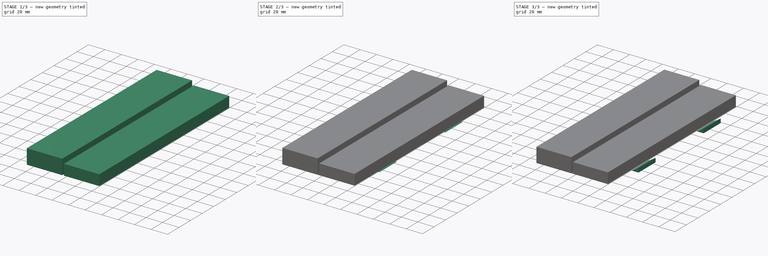
[diagram: build sequence overview — one tinted view per stage of 3, left to right]
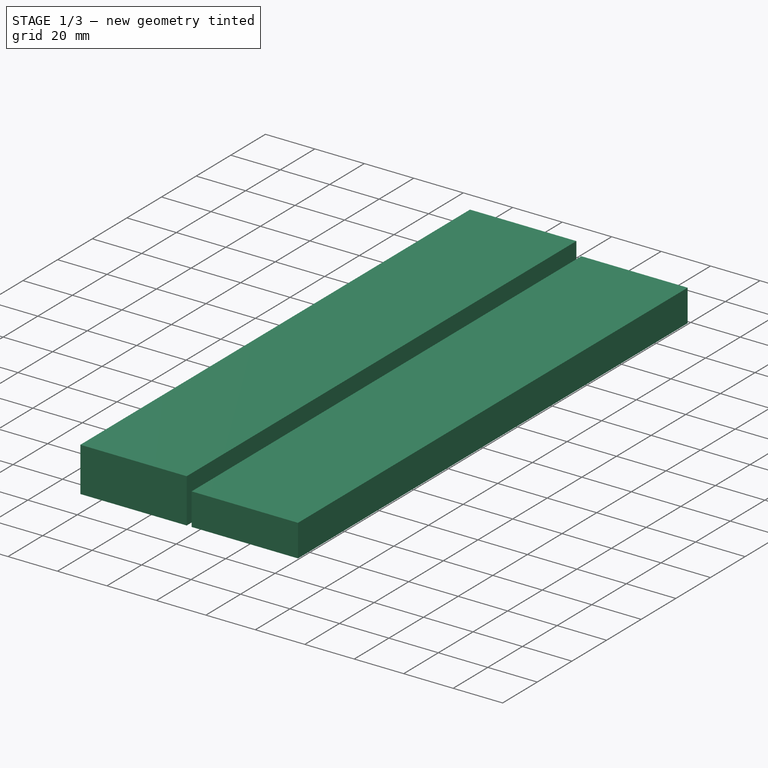
[diagram: stage 1 of 3 — iso view after this stage's code; geometry added in this stage tinted green]
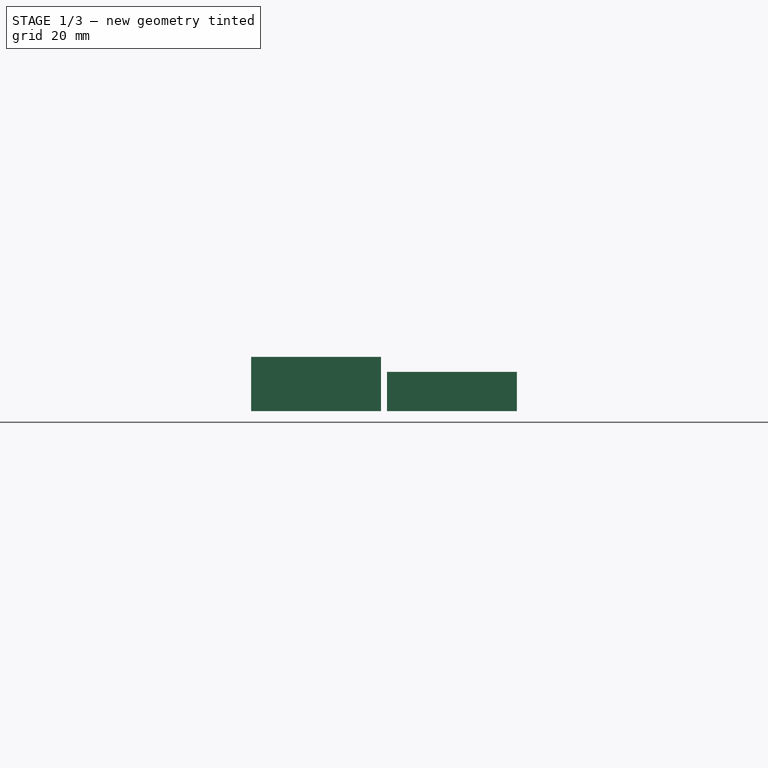
[diagram: stage 1 of 3 — front view after this stage's code; geometry added in this stage tinted green]
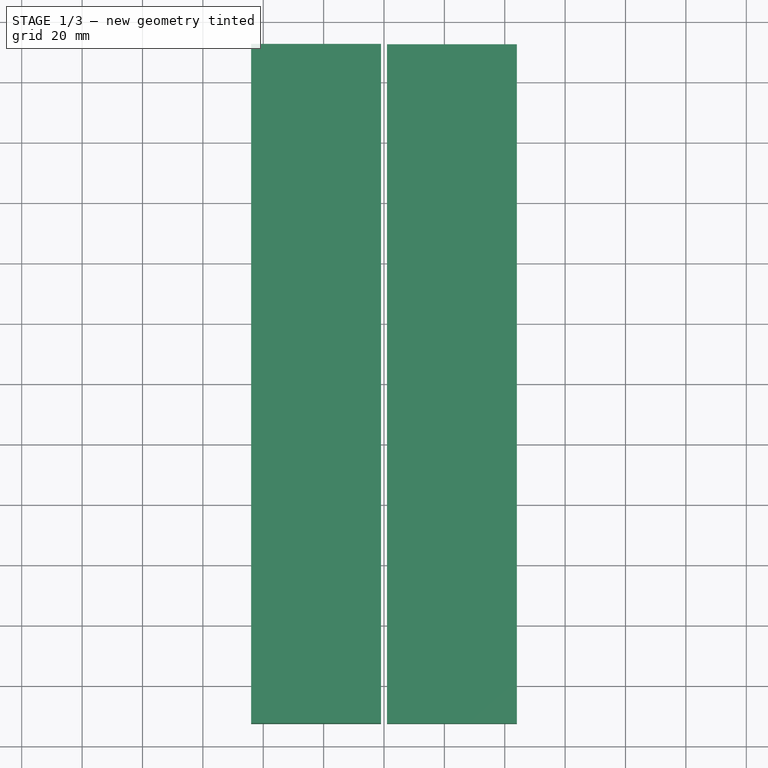
[diagram: stage 1 of 3 — top view after this stage's code; geometry added in this stage tinted green]
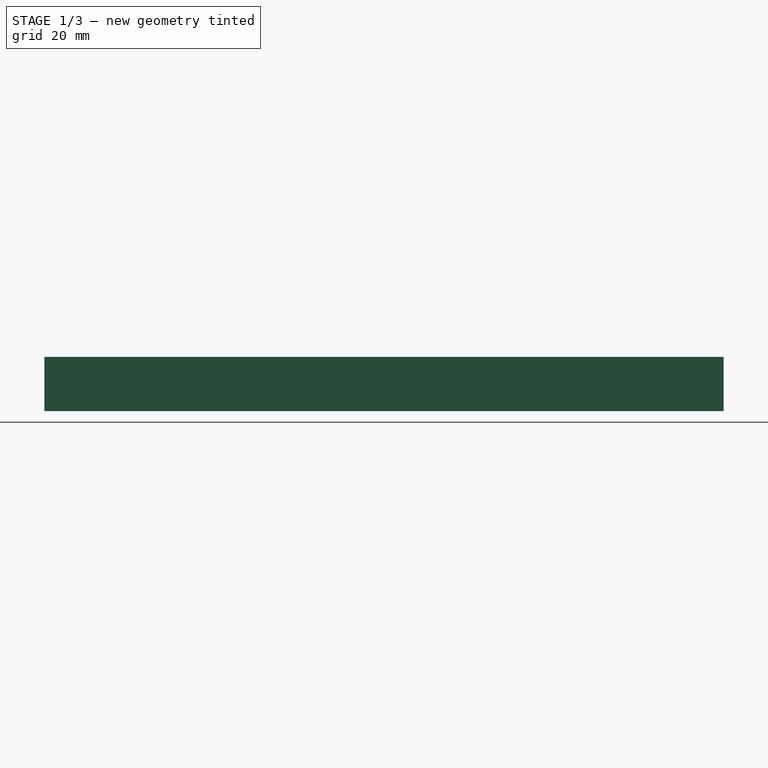
[diagram: stage 1 of 3 — right view after this stage's code; geometry added in this stage tinted green]
FCSTD DOCUMENT  (FreeCAD 2023.131R26244 +5365 (Git))
Label: Live Hinge Box
License: All rights reserved
LicenseURL: http://en.wikipedia.org/wiki/All_rights_reserved
objects: Sketcher::SketchObject×8, PartDesign::Pad×5, PartDesign::Pocket×3, Spreadsheet::Sheet×1, PartDesign::Body×1
note: 41 computed .brp shape members not serialized (recipe doc carries the construction recipe); baked Part::Feature solids carry a one-line shape summary decoded from their .brp

FEATURE [Spreadsheet::Sheet] Spreadsheet  label="Parameters"
  PythonMode = false
  ShowCells = 0
  TreeRank = 10
  cells = A1=Thickness; B1(Thickness)=2; A2=Box Internal Width; B2(box_internal_width)=221; A3=Box Internal Length; B3(box_internal_length)=39; A4=Box Depth Top; B4(box_top_depth)=16; A5=Box Depth Bottom; B5(box_bottom_depth)=11; A6=Live Hinge Width; B6(hinge_width)=2; A7=Live Hinge Thickness; B7(hinge_thickness)=0.2; A8=Clasp Width; B8(clasp_width)=30; A9=Clasp Height; B9(clasp_height)=5; A10=Clasp Length; B10(clasp_length)=7.5
FEATURE [Sketcher::SketchObject] Sketch
  ArcFitTolerance = 1e-06
  AttachmentSupport = -> [XY_Plane]
  ExternalBSplineMaxDegree = 5
  ExternalBSplineTolerance = 0.0001
  FullyConstrained = true
  InternalTolerance = 1e-06
  InvalidShape = false
  MakeInternals = false
  MapMode = 5
  Support = -> [XY_Plane]
  TreeRank = 12
  ValidateShape = true
  expr: Constraints[7] = <<Parameters>>.hinge_width / 2
  expr: Constraints[8] = <<Parameters>>.box_internal_width + 2 * <<Parameters>>.Thickness
  expr: Constraints[9] = <<Parameters>>.box_internal_length + 2 * <<Parameters>>.Thickness
  sketch-geometry (4):
    g0: LineSegment StartX=-44 StartY=112.5 StartZ=0 EndX=-1 EndY=112.5 EndZ=0
    g1: LineSegment StartX=-1 StartY=112.5 StartZ=0 EndX=-1 EndY=-112.5 EndZ=0
    g2: LineSegment StartX=-1 StartY=-112.5 StartZ=0 EndX=-44 EndY=-112.5 EndZ=0
    g3: LineSegment StartX=-44 StartY=-112.5 StartZ=0 EndX=-44 EndY=112.5 EndZ=0
  constraints (11):
    c: Coincident(g0,g1)
    c: Coincident(g1,g2)
    c: Coincident(g2,g3)
    c: Coincident(g3,g0)
    c: Horizontal(g0)
    c: Horizontal(g2)
    c: Vertical(g1)
    c: DistanceX(g0,g-1) = 1
    c: DistanceY(g1,g0) = 225
    c: DistanceX(g0,g0) = 43
    c: Symmetric(g0,g2,g-1)
FEATURE [PartDesign::Pad] Pad  label="Top"
  AddSubType = 0
  AlongSketchNormal = false
  AutoTaperInnerAngle = true
  CheckUpToFaceLimits = true
  ClaimChildren = false
  Direction = (0,0,1)
  Fit = 0
  FitJoin = 0
  InnerFit = 0
  InnerFitJoin = 0
  InvalidShape = false
  Length = 18
  Length2 = 100
  Linearize = true
  NewSolid = false
  Profile = -> Sketch
  Suppress = false
  TaperInnerAngle = 0
  TaperInnerAngleRev = 0
  TreeRank = 13
  Type = 0
  ValidateShape = true
  _ProfileBasedVersion = 1
  expr: Length = <<Parameters>>.box_top_depth + <<Parameters>>.Thickness
FEATURE [Sketcher::SketchObject] Sketch001
  ArcFitTolerance = 1e-06
  AttachmentSupport = -> [XY_Plane]
  ExternalBSplineMaxDegree = 5
  ExternalBSplineTolerance = 0.0001
  FullyConstrained = true
  InternalTolerance = 1e-06
  InvalidShape = false
  MakeInternals = false
  MapMode = 5
  Support = -> [XY_Plane]
  TreeRank = 14
  ValidateShape = true
  expr: Constraints[10] = <<Parameters>>.hinge_width / 2
  expr: Constraints[8] = <<Parameters>>.box_internal_width + 2 * <<Parameters>>.Thickness
  expr: Constraints[9] = <<Parameters>>.box_internal_length + 2 * <<Parameters>>.Thickness
  sketch-geometry (4):
    g0: LineSegment StartX=1 StartY=112.5 StartZ=0 EndX=44 EndY=112.5 EndZ=0
    g1: LineSegment StartX=44 StartY=112.5 StartZ=0 EndX=44 EndY=-112.5 EndZ=0
    g2: LineSegment StartX=44 StartY=-112.5 StartZ=0 EndX=1 EndY=-112.5 EndZ=0
    g3: LineSegment StartX=1 StartY=-112.5 StartZ=0 EndX=1 EndY=112.5 EndZ=0
  constraints (11):
    c: Coincident(g0,g1)
    c: Coincident(g1,g2)
    c: Coincident(g2,g3)
    c: Coincident(g3,g0)
    c: Horizontal(g0)
    c: Horizontal(g2)
    c: Vertical(g1)
    c: Symmetric(g0,g2,g-1)
    c: DistanceY(g1,g0) = 225
    c: DistanceX(g0,g0) = 43
    c: DistanceX(g-1,g0) = 1
FEATURE [PartDesign::Pad] Pad001  label="Bottom"
  AddSubType = 0
  AlongSketchNormal = false
  AutoTaperInnerAngle = true
  BaseFeature = -> Pad
  CheckUpToFaceLimits = true
  ClaimChildren = false
  Direction = (0,0,1)
  Fit = 0
  FitJoin = 0
  InnerFit = 0
  InnerFitJoin = 0
  InvalidShape = false
  Length = 13
  Length2 = 100
  Linearize = true
  NewSolid = false
  Profile = -> Sketch001
  Suppress = false
  TaperInnerAngle = 0
  TaperInnerAngleRev = 0
  TreeRank = 15
  Type = 0
  ValidateShape = true
  _ProfileBasedVersion = 1
  expr: Length = <<Parameters>>.box_bottom_depth + <<Parameters>>.Thickness
FEATURE [Sketcher::SketchObject] Sketch002
  ArcFitTolerance = 1e-06
  AttachmentSupport = -> [Pad001]
  ExternalBSplineMaxDegree = 5
  ExternalBSplineTolerance = 0.0001
  FullyConstrained = true
  InternalTolerance = 1e-06
  InvalidShape = false
  MakeInternals = false
  MapMode = 5
  Placement = pos=(0,0,0) rot=(1,0,0;3.14159rad)
  Support = -> [Pad001]
  TreeRank = 16
  ValidateShape = true
  expr: Constraints[10] = <<Parameters>>.box_internal_length
  expr: Constraints[8] = <<Parameters>>.hinge_width / 2 + <<Parameters>>.Thickness
  expr: Constraints[9] = <<Parameters>>.box_internal_width
  sketch-geometry (4):
    g0: LineSegment StartX=-42 StartY=110.5 StartZ=0 EndX=-3 EndY=110.5 EndZ=0
    g1: LineSegment StartX=-3 StartY=110.5 StartZ=0 EndX=-3 EndY=-110.5 EndZ=0
    g2: LineSegment StartX=-3 StartY=-110.5 StartZ=0 EndX=-42 EndY=-110.5 EndZ=0
    g3: LineSegment StartX=-42 StartY=-110.5 StartZ=0 EndX=-42 EndY=110.5 EndZ=0
  constraints (11):
    c: Coincident(g0,g1)
    c: Coincident(g1,g2)
    c: Coincident(g2,g3)
    c: Coincident(g3,g0)
    c: Horizontal(g0)
    c: Horizontal(g2)
    c: Vertical(g3)
    c: Symmetric(g0,g1,g-1)
    c: DistanceX(g0,g-1) = 3
    c: DistanceY(g1,g0) = 221
    c: DistanceX(g0,g0) = 39
FEATURE [PartDesign::Pocket] Pocket  label="Top Recess"
  AddSubType = 1
  AutoTaperInnerAngle = true
  BaseFeature = -> Pad001
  CheckUpToFaceLimits = true
  ClaimChildren = false
  Fit = 0
  FitJoin = 0
  InnerFit = 0
  InnerFitJoin = 0
  InvalidShape = false
  Length = 16
  Length2 = 100
  Linearize = true
  NewSolid = false
  Profile = -> Sketch002
  Suppress = false
  TaperInnerAngle = 0
  TaperInnerAngleRev = 0
  TreeRank = 17
  Type = 0
  ValidateShape = true
  _ProfileBasedVersion = 1
  _Version = 1
  expr: Length = <<Parameters>>.box_top_depth
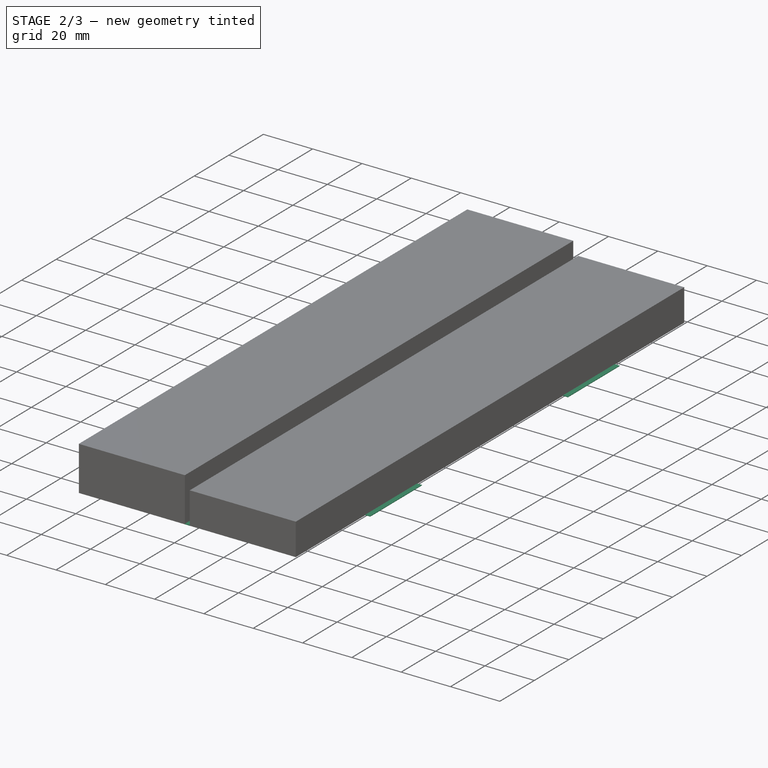
[diagram: stage 2 of 3 — iso view after this stage's code; geometry added in this stage tinted green]
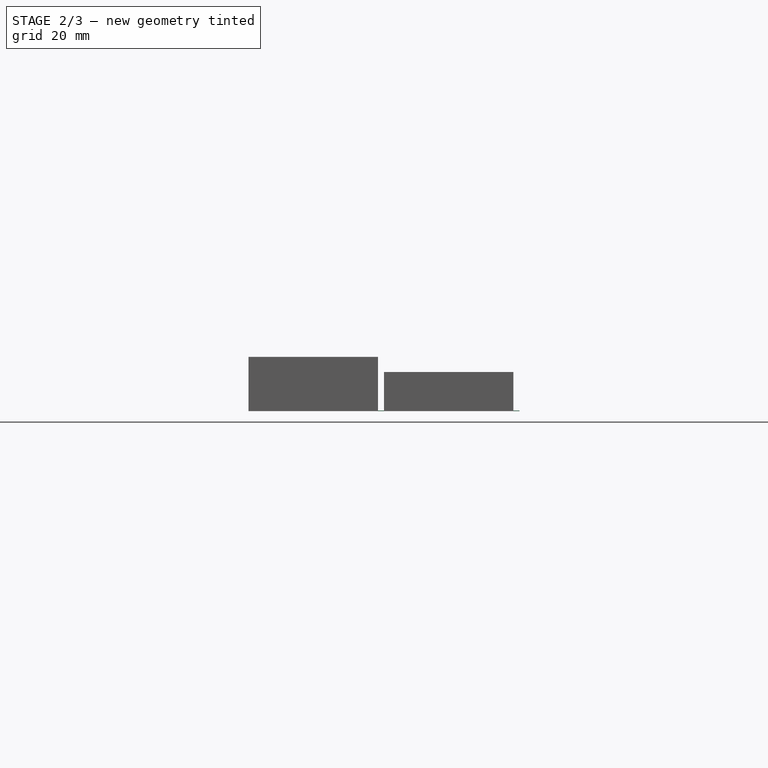
[diagram: stage 2 of 3 — front view after this stage's code; geometry added in this stage tinted green]
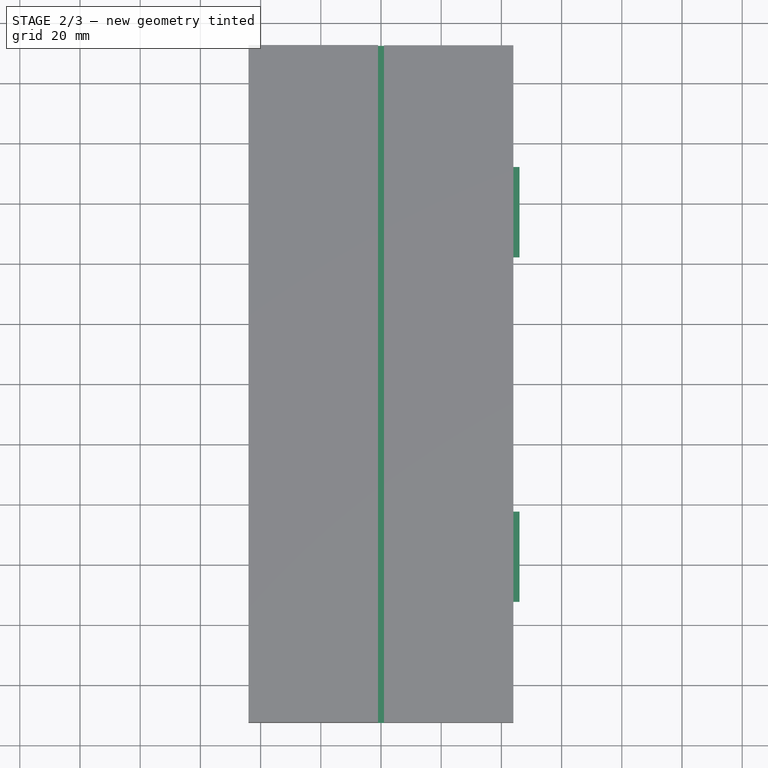
[diagram: stage 2 of 3 — top view after this stage's code; geometry added in this stage tinted green]
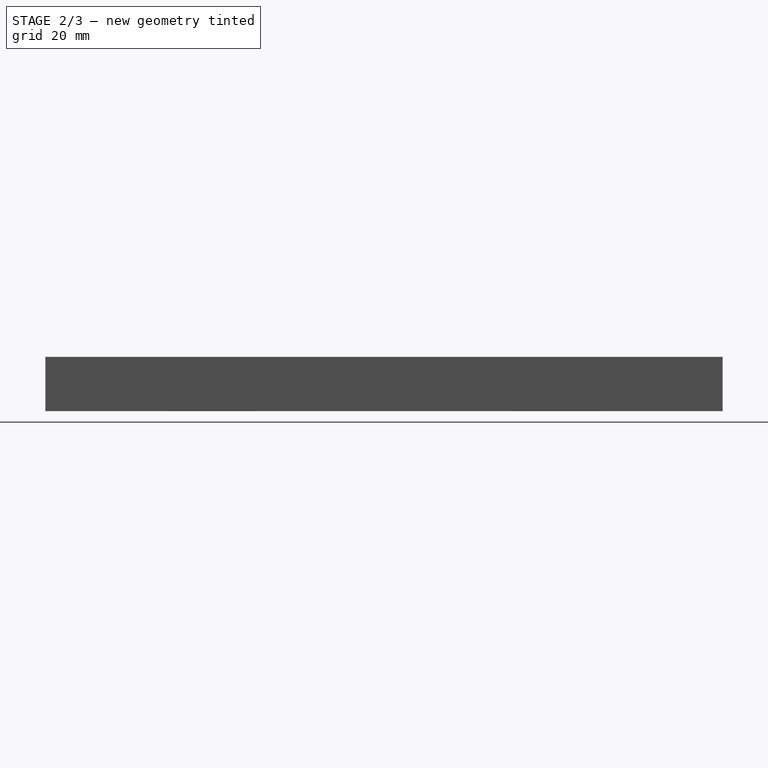
[diagram: stage 2 of 3 — right view after this stage's code; geometry added in this stage tinted green]
FEATURE [Sketcher::SketchObject] Sketch003
  ArcFitTolerance = 1e-06
  AttachmentSupport = -> [Pocket]
  ExternalBSplineMaxDegree = 5
  ExternalBSplineTolerance = 0.0001
  FullyConstrained = true
  InternalTolerance = 1e-06
  InvalidShape = false
  MakeInternals = false
  MapMode = 5
  Placement = pos=(0,0,0) rot=(1,0,0;3.14159rad)
  Support = -> [Pocket]
  TreeRank = 18
  ValidateShape = true
  expr: Constraints[10] = <<Parameters>>.box_internal_width
  expr: Constraints[8] = <<Parameters>>.hinge_width / 2 + <<Parameters>>.Thickness
  expr: Constraints[9] = <<Parameters>>.box_internal_length
  sketch-geometry (4):
    g0: LineSegment StartX=3 StartY=110.5 StartZ=0 EndX=42 EndY=110.5 EndZ=0
    g1: LineSegment StartX=42 StartY=110.5 StartZ=0 EndX=42 EndY=-110.5 EndZ=0
    g2: LineSegment StartX=42 StartY=-110.5 StartZ=0 EndX=3 EndY=-110.5 EndZ=0
    g3: LineSegment StartX=3 StartY=-110.5 StartZ=0 EndX=3 EndY=110.5 EndZ=0
  constraints (11):
    c: Coincident(g0,g1)
    c: Coincident(g1,g2)
    c: Coincident(g2,g3)
    c: Coincident(g3,g0)
    c: Horizontal(g0)
    c: Horizontal(g2)
    c: Vertical(g1)
    c: Symmetric(g0,g2,g-1)
    c: DistanceX(g-1,g0) = 3
    c: DistanceX(g0,g0) = 39
    c: DistanceY(g1,g0) = 221
FEATURE [PartDesign::Pocket] Pocket001  label="Bottom Recess"
  AddSubType = 1
  AutoTaperInnerAngle = true
  BaseFeature = -> Pocket
  CheckUpToFaceLimits = true
  ClaimChildren = false
  Fit = 0
  FitJoin = 0
  InnerFit = 0
  InnerFitJoin = 0
  InvalidShape = false
  Length = 11
  Length2 = 100
  Linearize = true
  NewSolid = false
  Profile = -> Sketch003
  Suppress = false
  TaperInnerAngle = 0
  TaperInnerAngleRev = 0
  TreeRank = 19
  Type = 0
  ValidateShape = true
  _ProfileBasedVersion = 1
  _Version = 1
  expr: Length = <<Parameters>>.box_bottom_depth
FEATURE [Sketcher::SketchObject] Sketch004
  ArcFitTolerance = 1e-06
  AttachmentSupport = -> [XY_Plane]
  ExternalBSplineMaxDegree = 5
  ExternalBSplineTolerance = 0.0001
  FullyConstrained = true
  InternalTolerance = 1e-06
  InvalidShape = false
  MakeInternals = false
  MapMode = 5
  Support = -> [XY_Plane]
  TreeRank = 20
  ValidateShape = true
  expr: Constraints[10] = <<Parameters>>.box_internal_width + 2 * <<Parameters>>.Thickness
  expr: Constraints[11] = <<Parameters>>.hinge_width
  expr: Constraints[30] = <<Parameters>>.clasp_width
  expr: Constraints[32] = <<Parameters>>.hinge_width / 2 + <<Parameters>>.Thickness * 2 + <<Parameters>>.box_internal_length
  expr: Constraints[33] = <<Parameters>>.box_internal_width / 4 + <<Parameters>>.Thickness - <<Parameters>>.clasp_width / 2
  expr: Constraints[34] = <<Parameters>>.hinge_width
  sketch-geometry (13):
    g0: LineSegment StartX=1 StartY=-112.5 StartZ=0 EndX=1 EndY=112.5 EndZ=0
    g1: LineSegment StartX=1 StartY=112.5 StartZ=0 EndX=-1 EndY=112.5 EndZ=0
    g2: LineSegment StartX=-1 StartY=112.5 StartZ=0 EndX=-1 EndY=-112.5 EndZ=0
    g3: LineSegment StartX=-1 StartY=-112.5 StartZ=0 EndX=1 EndY=-112.5 EndZ=0
    g4: GeomPoint [constr] X=0 Y=0 Z=0
    g5: LineSegment StartX=44 StartY=72.25 StartZ=0 EndX=46 EndY=72.25 EndZ=0
    g6: LineSegment StartX=46 StartY=72.25 StartZ=0 EndX=46 EndY=42.25 EndZ=0
    g7: LineSegment StartX=46 StartY=42.25 StartZ=0 EndX=44 EndY=42.25 EndZ=0
    g8: LineSegment StartX=44 StartY=42.25 StartZ=0 EndX=44 EndY=72.25 EndZ=0
    g9: LineSegment StartX=44 StartY=-42.25 StartZ=0 EndX=46 EndY=-42.25 EndZ=0
    g10: LineSegment StartX=46 StartY=-42.25 StartZ=0 EndX=46 EndY=-72.25 EndZ=0
    g11: LineSegment StartX=46 StartY=-72.25 StartZ=0 EndX=44 EndY=-72.25 EndZ=0
    g12: LineSegment StartX=44 StartY=-72.25 StartZ=0 EndX=44 EndY=-42.25 EndZ=0
  constraints (35):
    c: Coincident(g0,g1)
    c: Coincident(g1,g2)
    c: Coincident(g2,g3)
    c: Coincident(g3,g0)
    c: Horizontal(g1)
    c: Horizontal(g3)
    c: Vertical(g0)
    c: Vertical(g2)
    c: Symmetric(g1,g0,g4)
    c: Coincident(g4,g-1)
    c: DistanceY(g0,g0) = 225
    c: DistanceX(g1,g0) = 2
    c: Coincident(g5,g6)
    c: Coincident(g6,g7)
    c: Coincident(g7,g8)
    c: Coincident(g8,g5)
    c: Horizontal(g5)
    c: Horizontal(g7)
    c: Vertical(g6)
    c: Vertical(g8)
    c: Coincident(g9,g10)
    c: Coincident(g10,g11)
    c: Coincident(g11,g12)
    c: Coincident(g12,g9)
    c: Horizontal(g9)
    c: Horizontal(g11)
    c: Vertical(g10)
    c: Vertical(g12)
    c: Equal(g5,g9)
    c: Equal(g6,g10)
    c: DistanceY(g6,g5) = 30
    c: Symmetric(g7,g9,g-1)
    c: DistanceX(g4,g5) = 44
    c: DistanceY(g4,g7) = 42.25
    c: DistanceX(g5,g5) = 2
FEATURE [PartDesign::Pad] Pad002  label="Hinge"
  AddSubType = 0
  AlongSketchNormal = false
  AutoTaperInnerAngle = true
  BaseFeature = -> Pocket001
  CheckUpToFaceLimits = true
  ClaimChildren = false
  Direction = (0,0,1)
  Fit = 0
  FitJoin = 0
  InnerFit = 0
  InnerFitJoin = 0
  InvalidShape = false
  Length = 0.2
  Length2 = 100
  Linearize = true
  NewSolid = false
  Profile = -> Sketch004
  Suppress = false
  TaperInnerAngle = 0
  TaperInnerAngleRev = 0
  TreeRank = 21
  Type = 0
  ValidateShape = true
  _ProfileBasedVersion = 1
  expr: Length = <<Parameters>>.hinge_thickness
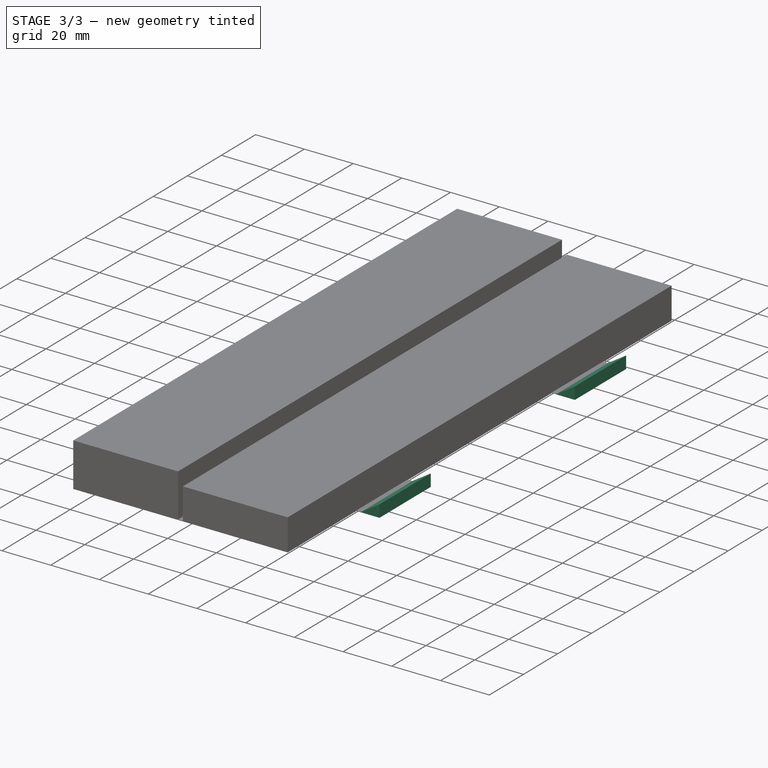
[diagram: stage 3 of 3 — iso view after this stage's code; geometry added in this stage tinted green]
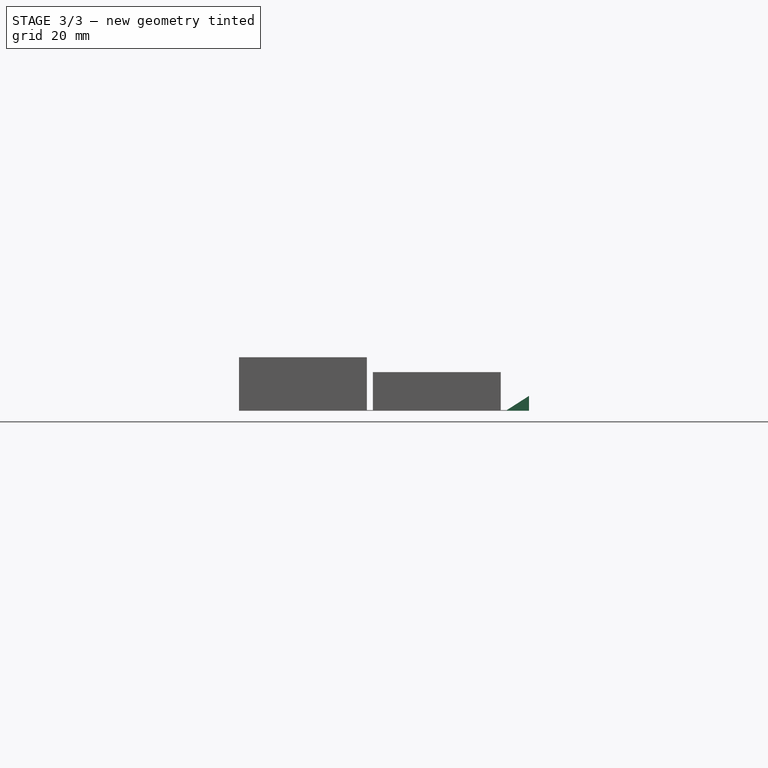
[diagram: stage 3 of 3 — front view after this stage's code; geometry added in this stage tinted green]
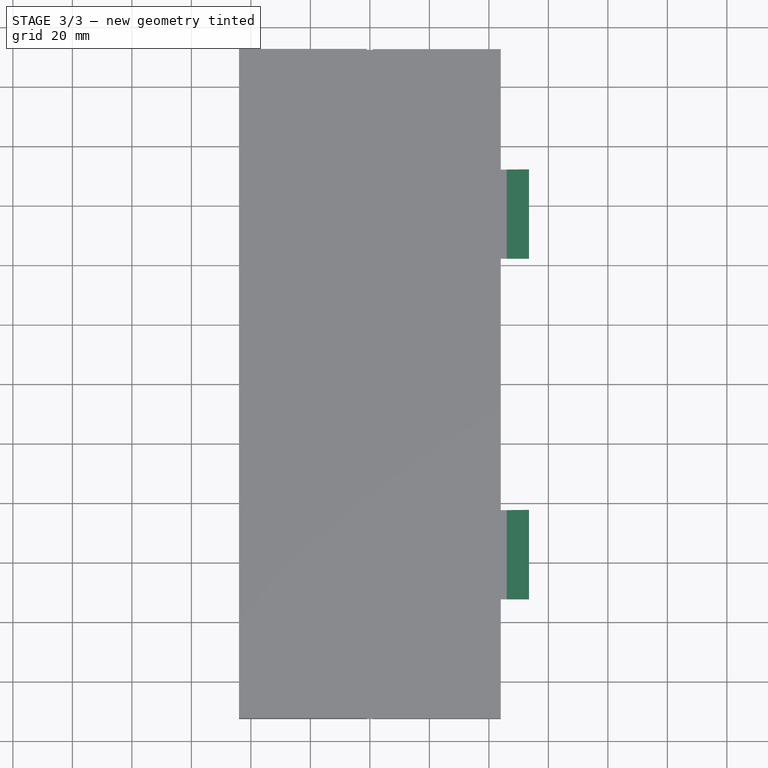
[diagram: stage 3 of 3 — top view after this stage's code; geometry added in this stage tinted green]
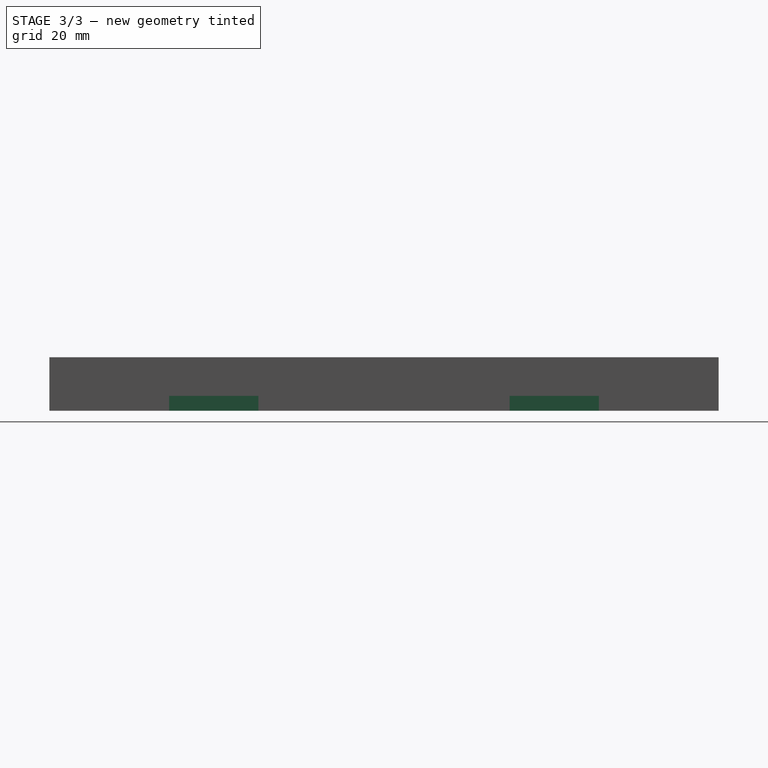
[diagram: stage 3 of 3 — right view after this stage's code; geometry added in this stage tinted green]
FEATURE [Sketcher::SketchObject] Sketch005
  ArcFitTolerance = 1e-06
  AttachmentSupport = -> [Pad002]
  ExternalBSplineMaxDegree = 5
  ExternalBSplineTolerance = 0.0001
  FullyConstrained = true
  InternalTolerance = 1e-06
  InvalidShape = false
  MakeInternals = false
  MapMode = 5
  Placement = pos=(0,-72.25,0) rot=(1,0,0;1.5708rad)
  Support = -> [Pad002]
  TreeRank = 22
  ValidateShape = true
  expr: Constraints[10] = <<Parameters>>.hinge_thickness
  expr: Constraints[11] = <<Parameters>>.clasp_length
  expr: Constraints[8] = <<Parameters>>.hinge_width * 1.5 + <<Parameters>>.Thickness * 2 + <<Parameters>>.box_internal_length
  expr: Constraints[9] = <<Parameters>>.clasp_height
  sketch-geometry (4):
    g0: LineSegment StartX=46 StartY=0 StartZ=0 EndX=46 EndY=0.2 EndZ=0
    g1: LineSegment StartX=46 StartY=0.2 StartZ=0 EndX=53.5 EndY=5 EndZ=0
    g2: LineSegment StartX=53.5 StartY=5 StartZ=0 EndX=53.5 EndY=0 EndZ=0
    g3: LineSegment StartX=53.5 StartY=0 StartZ=0 EndX=46 EndY=0 EndZ=0
  constraints (12):
    c: PointOnObject(g0,g-1)
    c: Vertical(g0)
    c: Coincident(g1,g0)
    c: Coincident(g2,g1)
    c: PointOnObject(g2,g-1)
    c: Vertical(g2)
    c: Coincident(g3,g2)
    c: Coincident(g3,g0)
    c: DistanceX(g-1,g0) = 46
    c: DistanceY(g2,g1) = 5
    c: DistanceY(g0,g0) = 0.2
    c: DistanceX(g0,g2) = 7.5
FEATURE [PartDesign::Pad] Pad003  label="Left Clasp"
  AddSubType = 0
  AlongSketchNormal = false
  AutoTaperInnerAngle = true
  BaseFeature = -> Pad002
  CheckUpToFaceLimits = true
  ClaimChildren = false
  Direction = (0,-1,2e-16)
  Fit = 0
  FitJoin = 0
  InnerFit = 0
  InnerFitJoin = 0
  InvalidShape = false
  Length = 30
  Length2 = 100
  Linearize = true
  NewSolid = false
  Profile = -> Sketch005
  Reversed = true
  Suppress = false
  TaperInnerAngle = 0
  TaperInnerAngleRev = 0
  TreeRank = 23
  Type = 0
  ValidateShape = true
  _ProfileBasedVersion = 1
  expr: Length = <<Parameters>>.clasp_width
FEATURE [Sketcher::SketchObject] Sketch006
  ArcFitTolerance = 1e-06
  AttachmentSupport = -> [Pad003]
  ExternalBSplineMaxDegree = 5
  ExternalBSplineTolerance = 0.0001
  FullyConstrained = true
  InternalTolerance = 1e-06
  InvalidShape = false
  MakeInternals = false
  MapMode = 5
  Placement = pos=(0,42.25,0) rot=(1,0,0;1.5708rad)
  Support = -> [Pad003]
  TreeRank = 24
  ValidateShape = true
  expr: Constraints[11] = <<Parameters>>.clasp_length
  expr: Constraints[6] = <<Parameters>>.hinge_width * 1.5 + <<Parameters>>.Thickness * 2 + <<Parameters>>.box_internal_length
  expr: Constraints[7] = <<Parameters>>.hinge_thickness
  expr: Constraints[8] = <<Parameters>>.clasp_height
  sketch-geometry (4):
    g0: LineSegment StartX=46 StartY=0 StartZ=0 EndX=46 EndY=0.2 EndZ=0
    g1: LineSegment StartX=46 StartY=0.2 StartZ=0 EndX=53.5 EndY=5 EndZ=0
    g2: LineSegment StartX=53.5 StartY=5 StartZ=0 EndX=53.5 EndY=0 EndZ=0
    g3: LineSegment StartX=53.5 StartY=0 StartZ=0 EndX=46 EndY=0 EndZ=0
  constraints (12):
    c: Vertical(g0)
    c: Coincident(g1,g0)
    c: Coincident(g2,g1)
    c: Vertical(g2)
    c: Coincident(g3,g2)
    c: Coincident(g3,g0)
    c: DistanceX(g-1,g0) = 46
    c: DistanceY(g0,g0) = 0.2
    c: DistanceY(g2,g1) = 5
    c: PointOnObject(g2,g-1)
    c: PointOnObject(g0,g-1)
    c: DistanceX(g0,g2) = 7.5
FEATURE [PartDesign::Pad] Pad004  label="Right Clasp"
  AddSubType = 0
  AlongSketchNormal = false
  AutoTaperInnerAngle = true
  BaseFeature = -> Pad003
  CheckUpToFaceLimits = true
  ClaimChildren = false
  Direction = (0,-1,2e-16)
  Fit = 0
  FitJoin = 0
  InnerFit = 0
  InnerFitJoin = 0
  InvalidShape = false
  Length = 30
  Length2 = 100
  Linearize = true
  NewSolid = false
  Profile = -> Sketch006
  Reversed = true
  Suppress = false
  TaperInnerAngle = 0
  TaperInnerAngleRev = 0
  TreeRank = 25
  Type = 0
  ValidateShape = true
  _ProfileBasedVersion = 1
  expr: Length = <<Parameters>>.clasp_width
FEATURE [Sketcher::SketchObject] Sketch007
  ArcFitTolerance = 1e-06
  AttachmentSupport = -> [Pad004]
  ExternalBSplineMaxDegree = 5
  ExternalBSplineTolerance = 0.0001
  FullyConstrained = true
  InternalTolerance = 1e-06
  InvalidShape = false
  MakeInternals = false
  MapMode = 5
  Placement = pos=(0,0,-1.6e-14) rot=(1,0,0;3.14159rad)
  Support = -> [Pad004]
  TreeRank = 26
  ValidateShape = true
  expr: Constraints[19] = <<Parameters>>.box_internal_width / 4 + <<Parameters>>.Thickness - <<Parameters>>.clasp_width / 2 + 1
  expr: Constraints[20] = <<Parameters>>.clasp_width - 2
  expr: Constraints[21] = <<Parameters>>.hinge_width * 1.5 + <<Parameters>>.Thickness * 2 + <<Parameters>>.box_internal_length + <<Parameters>>.clasp_length - 3
  sketch-geometry (8):
    g0: LineSegment StartX=50.5 StartY=71.25 StartZ=0 EndX=52.5 EndY=71.25 EndZ=0
    g1: LineSegment StartX=52.5 StartY=71.25 StartZ=0 EndX=52.5 EndY=43.25 EndZ=0
    g2: LineSegment StartX=52.5 StartY=43.25 StartZ=0 EndX=50.5 EndY=43.25 EndZ=0
    g3: LineSegment StartX=50.5 StartY=43.25 StartZ=0 EndX=50.5 EndY=71.25 EndZ=0
    g4: LineSegment StartX=50.5 StartY=-43.25 StartZ=0 EndX=52.5 EndY=-43.25 EndZ=0
    g5: LineSegment StartX=52.5 StartY=-43.25 StartZ=0 EndX=52.5 EndY=-71.25 EndZ=0
    g6: LineSegment StartX=52.5 StartY=-71.25 StartZ=0 EndX=50.5 EndY=-71.25 EndZ=0
    g7: LineSegment StartX=50.5 StartY=-71.25 StartZ=0 EndX=50.5 EndY=-43.25 EndZ=0
  constraints (23):
    c: Coincident(g0,g1)
    c: Coincident(g1,g2)
    c: Coincident(g2,g3)
    c: Coincident(g3,g0)
    c: Horizontal(g0)
    c: Horizontal(g2)
    c: Vertical(g1)
    c: Vertical(g3)
    c: Coincident(g4,g5)
    c: Coincident(g5,g6)
    c: Coincident(g6,g7)
    c: Coincident(g7,g4)
    c: Horizontal(g4)
    c: Horizontal(g6)
    c: Vertical(g5)
    c: Vertical(g7)
    c: Equal(g2,g4)
    c: Equal(g5,g1)
    c: Symmetric(g2,g4,g-1)
    c: DistanceY(g-1,g2) = 43.25
    c: DistanceY(g1,g0) = 28
    c: DistanceX(g-1,g2) = 50.5
    c: DistanceX(g0,g0) = 2
FEATURE [PartDesign::Pocket] Pocket002  label="Clasp Hole"
  AddSubType = 1
  AutoTaperInnerAngle = true
  BaseFeature = -> Pad004
  CheckUpToFaceLimits = true
  ClaimChildren = false
  Fit = 0
  FitJoin = 0
  InnerFit = 0
  InnerFitJoin = 0
  InvalidShape = false
  Length = 2
  Length2 = 100
  Linearize = true
  NewSolid = false
  Profile = -> Sketch007
  Suppress = false
  TaperAngle = 15
  TaperInnerAngle = -15
  TaperInnerAngleRev = 0
  TreeRank = 27
  Type = 0
  ValidateShape = true
  _ProfileBasedVersion = 1
  _Version = 1
FEATURE [PartDesign::Body] Body  label="Box"
  AutoGroupSolids = false
  ClaimAllChildren = false
  ExportMode = 0
  Group = -> [Sketch,Pad,Sketch001,Pad001,Sketch002,Pocket,Sketch003,Pocket001,Sketch004,Pad002,Sketch005,Pad003,Sketch006,Pad004,Sketch007,Pocket002]
  InvalidShape = false
  Origin = -> Origin
  Tip = -> Pocket002
  TreeRank = 11
  ValidateShape = true
  _ExportChildren = -> [Pad,Pad001,Pocket,Pocket001,Pad002,Pad003,Pad004,Pocket002]
  _GroupVersion = 1
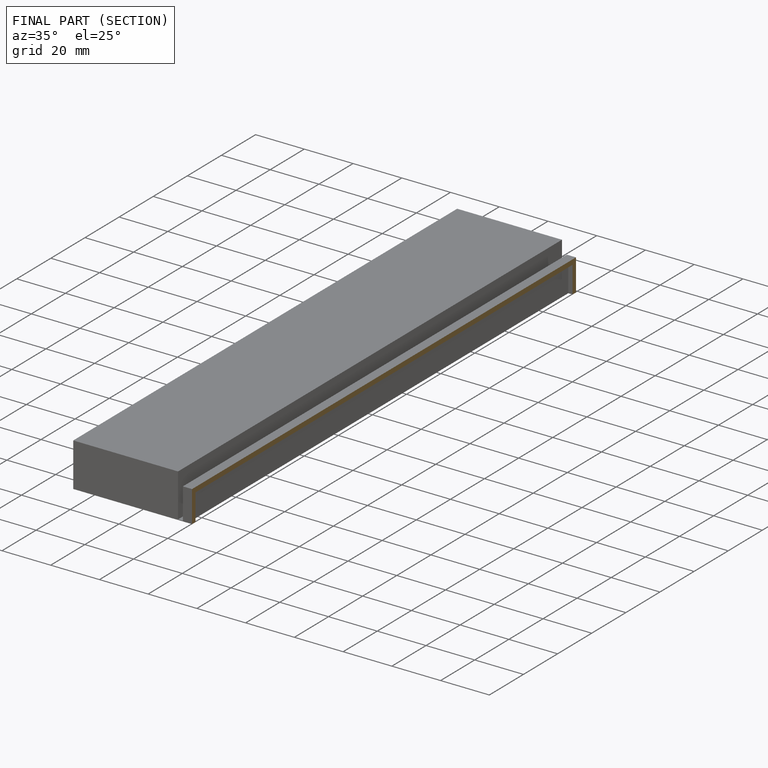
[diagram: finished part — half-section view (interior)]
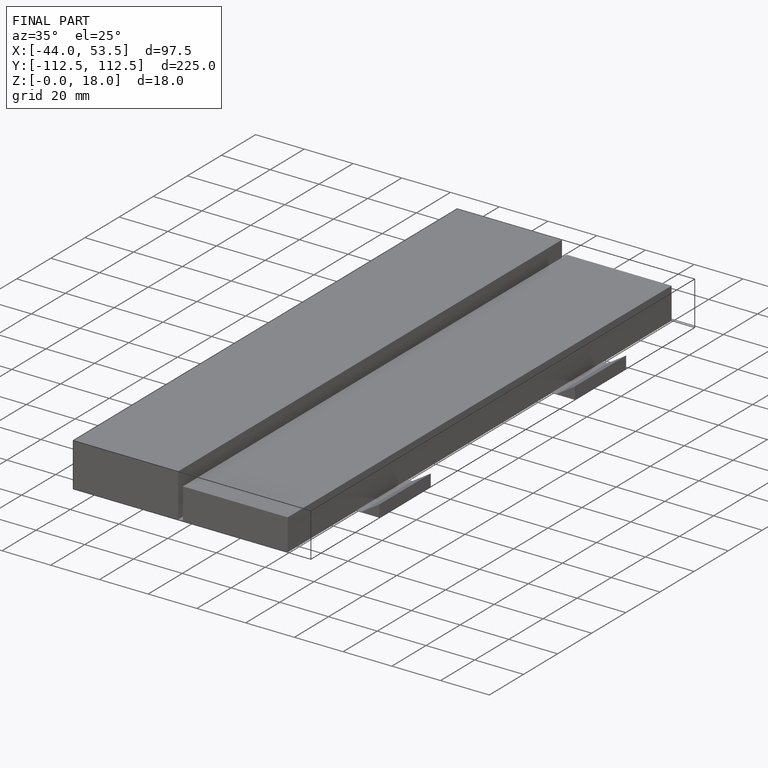
[diagram: finished part — iso view with bounding-box wireframe]
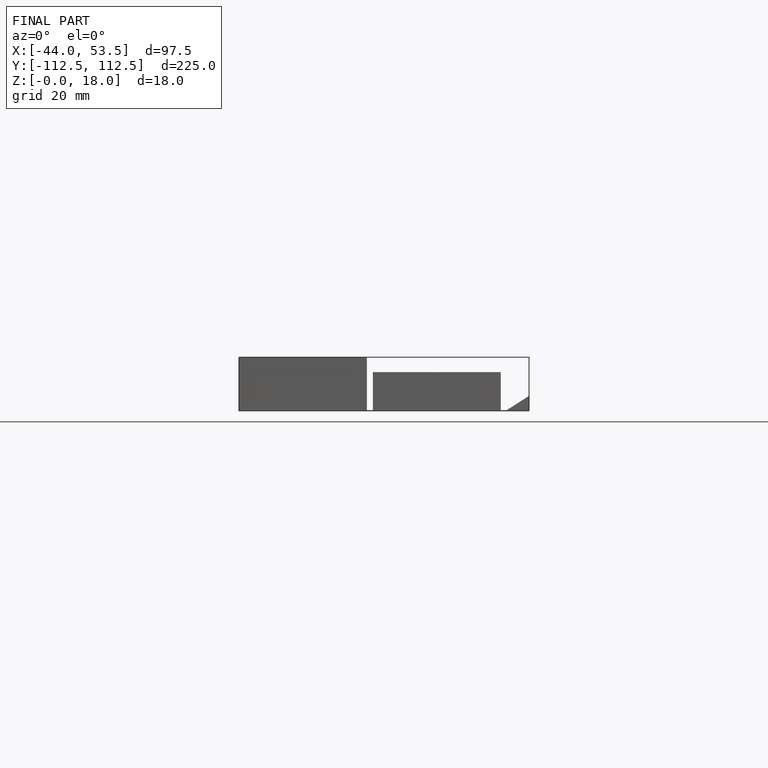
[diagram: finished part — front view with bounding-box wireframe]
